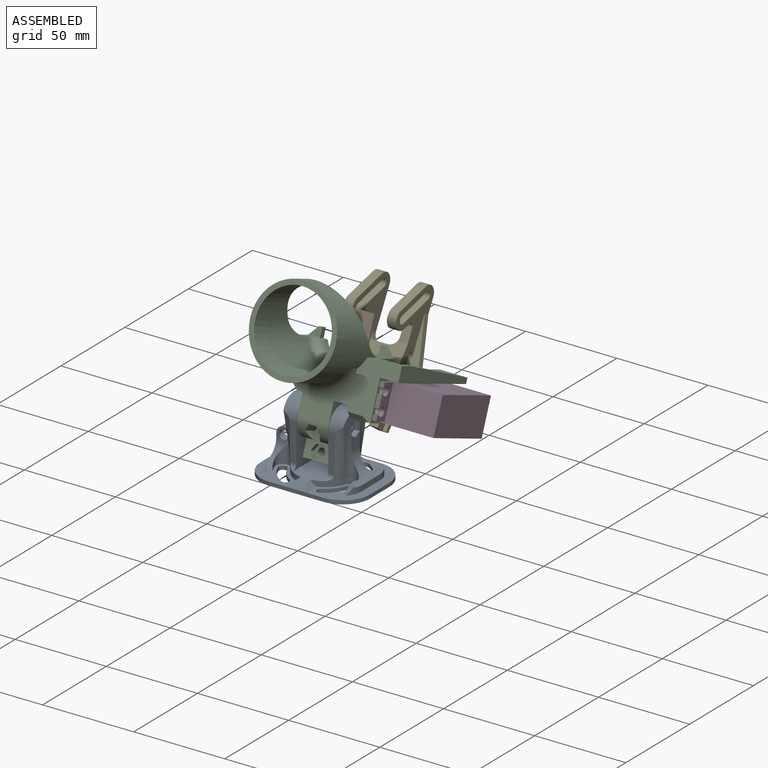
[diagram: assembled view]
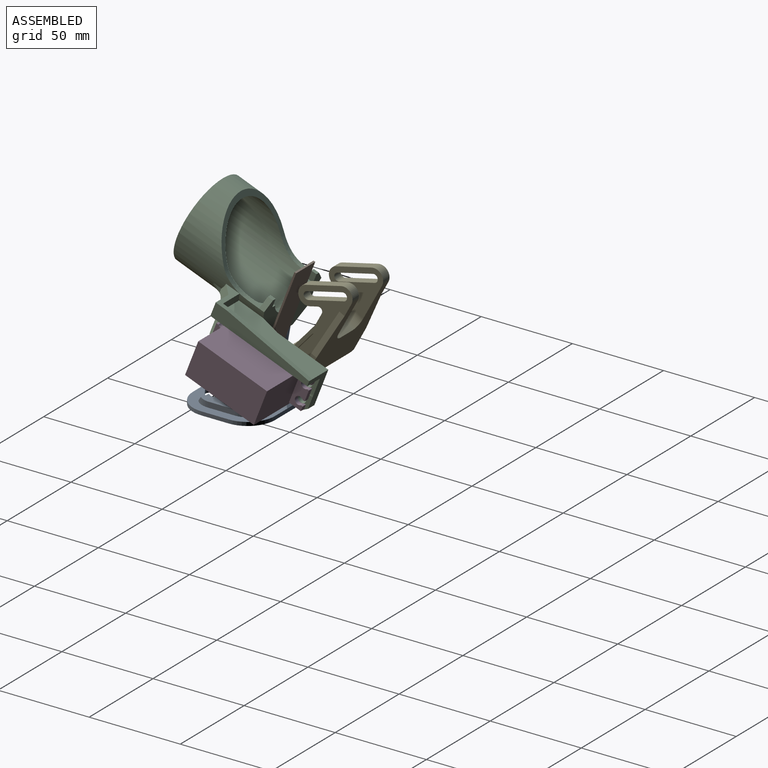
[diagram: assembled view, second angle]
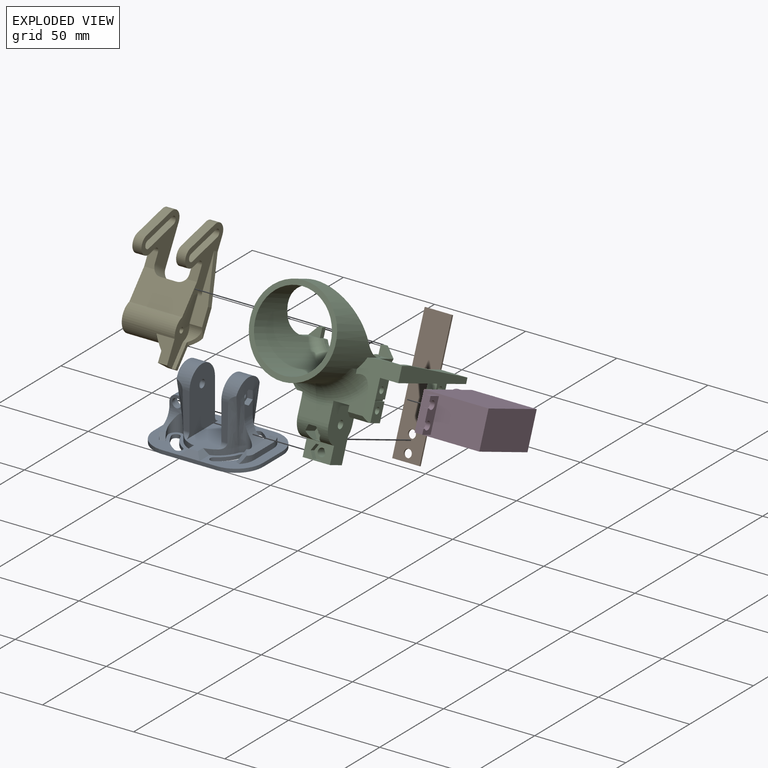
[diagram: exploded view]
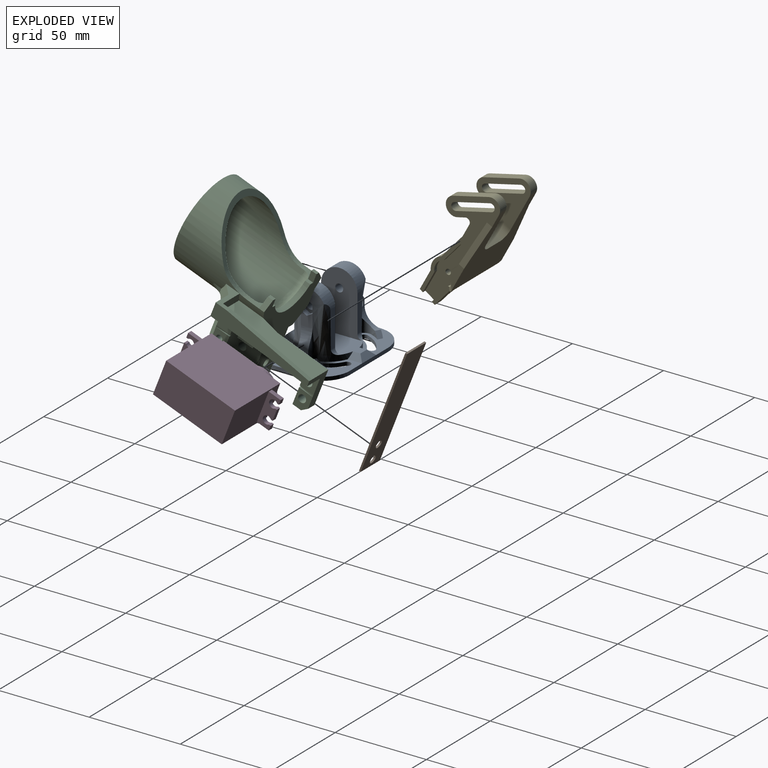
[diagram: exploded view, second angle]
ASSEMBLY  parts=5 mates=4
PART A: 100 faces, bbox 60.1x45.1x38.1 mm
  f0: plane 7.79x6.35mm, normal (1,0,0), area 42.6mm2, adj f62,f64,f66,f94,f95
  f1: cylinder r=2.16mm len=5mm, axis (-1,0,0), area 67.8mm2, adj f59,f99
  f2: plane 2.29x0.95mm, normal (0,0,1), area 1.1mm2, adj f35,f69,f91
  f3: plane 27.42x6.35mm, normal (-1,0,0), area 109.9mm2, adj f51,f57,f67,f68,f84,f85,f86,f91
  f4: plane 39x17.73mm, normal (0,0,1), area 556.7mm2, adj f32,f40,f41,f49,f54,f59,f71,f72
  f5: plane 45x24.5mm, normal (0,0,1), area 510.6mm2, adj f6,f7,f11,f12,f13,f14,f15,f22
  f6: cylinder r=15mm len=15mm, axis (0,0,-1), area 47.1mm2, adj f5,f7,f29,f31
  f7: plane 30x2mm, normal (0,-1,0), area 60mm2, adj f5,f6,f8,f30,f31,f82
  f8: cylinder r=15mm len=15mm, axis (0,0,-1), area 47.1mm2, adj f7,f9,f30,f31
  f9: plane 15x2mm, normal (1,0,0), area 30mm2, adj f8,f10,f30,f31
  f10: cylinder r=15mm len=15mm, axis (0,0,-1), area 47.1mm2, adj f9,f11,f30,f31
  f11: plane 30x2mm, normal (0,1,0), area 60mm2, adj f5,f10,f12,f30,f31,f83
  f12: cylinder r=15mm len=15mm, axis (0,0,-1), area 47.1mm2, adj f5,f11,f29,f31
  f13: cylinder r=2.16mm len=4.18mm, axis (0,0,-1), area 13.6mm2, adj f5,f14,f25,f31
  f14: cylinder r=17.48mm len=9.12mm, axis (0,0,-1), area 24.4mm2, adj f5,f13,f15,f31
  f15: cylinder r=2.16mm len=4.03mm, axis (0,0,-1), area 13.6mm2, adj f5,f14,f25,f31
  f16: cylinder r=17.48mm len=9.12mm, axis (0,0,-1), area 24.4mm2, adj f17,f26,f30,f31
  f17: cylinder r=2.16mm len=4.18mm, axis (0,0,-1), area 13.6mm2, adj f16,f18,f30,f31
  f18: cylinder r=21.8mm len=11.38mm, axis (0,0,-1), area 30.4mm2, adj f17,f26,f30,f31
  f19: cylinder r=2.16mm len=4.03mm, axis (0,0,-1), area 13.6mm2, adj f20,f27,f30,f31
  f20: cylinder r=21.8mm len=11.38mm, axis (0,0,-1), area 30.4mm2, adj f19,f21,f30,f31
  f21: cylinder r=2.16mm len=4.18mm, axis (0,0,-1), area 13.6mm2, adj f20,f27,f30,f31
  f22: cylinder r=17.48mm len=9.12mm, axis (0,0,-1), area 24.4mm2, adj f5,f23,f28,f31
  f23: cylinder r=2.16mm len=4.18mm, axis (0,0,-1), area 13.6mm2, adj f5,f22,f24,f31
  f24: cylinder r=21.8mm len=11.38mm, axis (0,0,-1), area 30.4mm2, adj f5,f23,f28,f31
  f25: cylinder r=21.8mm len=11.38mm, axis (0,0,-1), area 30.4mm2, adj f5,f13,f15,f31
  f26: cylinder r=2.16mm len=4.03mm, axis (0,0,-1), area 13.6mm2, adj f16,f18,f30,f31
  f27: cylinder r=17.48mm len=9.12mm, axis (0,0,-1), area 24.4mm2, adj f19,f21,f30,f31
  f28: cylinder r=2.16mm len=4.03mm, axis (0,0,-1), area 13.6mm2, adj f5,f22,f24,f31
  f29: plane 15x2mm, normal (-1,0,0), area 30mm2, adj f5,f6,f12,f31
  f30: plane 45x24.5mm, normal (0,0,1), area 510.6mm2, adj f7,f8,f9,f10,f11,f16,f17,f18
  f31: plane 60x45mm, normal (0,0,-1), area 2211.4mm2, adj f6,f7,f8,f9,f10,f11,f12,f13
  f32: cylinder r=15.64mm len=12.17mm, axis (0,0,-1), area 47.4mm2, adj f4,f5,f33,f55,f56,f72,f80
  f33: cylinder r=4mm len=9.67mm, axis (0,0,-1), area 75.6mm2, adj f5,f32,f34,f57,f91
  f34: cylinder r=23.64mm len=5.37mm, axis (0,0,-1), area 14.7mm2, adj f5,f33,f69,f91
  f35: cylinder r=10mm len=7.34mm, axis (0,0,-1), area 22.1mm2, adj f2,f5,f36,f69,f91
  f36: plane 15x14mm, normal (-1,0,0), area 132.3mm2, adj f5,f35,f37,f85,f86,f87,f91,f92
  f37: cylinder r=10mm len=7.34mm, axis (0,0,-1), area 22.1mm2, adj f5,f36,f50,f76,f92
  f38: cylinder r=23.64mm len=5.37mm, axis (0,0,-1), area 14.7mm2, adj f5,f39,f76,f92
  f39: cylinder r=4mm len=9.67mm, axis (0,0,-1), area 75.6mm2, adj f5,f38,f40,f51,f92
  f40: cylinder r=15.64mm len=12.17mm, axis (0,0,-1), area 47.4mm2, adj f4,f5,f39,f52,f53,f73,f81
  f41: cylinder r=15.64mm len=12.17mm, axis (0,0,-1), area 47.4mm2, adj f4,f30,f42,f60,f61,f74,f78
  f42: cylinder r=4mm len=16.4mm, axis (0,0,-1), area 75mm2, adj f30,f41,f43,f62,f77
  f43: cylinder r=23.64mm len=5.37mm, axis (0,0,-1), area 17.9mm2, adj f30,f42,f75,f77
  f44: cylinder r=10mm len=7.34mm, axis (0,0,-1), area 21.6mm2, adj f30,f45,f75,f77
  f45: plane 15x3mm, normal (1,0,0), area 45mm2, adj f30,f44,f46,f77
  f46: cylinder r=10mm len=7.34mm, axis (0,0,-1), area 21.6mm2, adj f30,f45,f70,f77
  f47: cylinder r=23.64mm len=5.37mm, axis (0,0,-1), area 17.9mm2, adj f30,f48,f70,f77
  f48: cylinder r=4mm len=16.4mm, axis (0,0,-1), area 75mm2, adj f30,f47,f49,f64,f77
  f49: cylinder r=15.64mm len=12.17mm, axis (0,0,-1), area 47.4mm2, adj f4,f30,f48,f58,f65,f71,f79
  f50: plane 2.29x0.95mm, normal (0,0,1), area 1.1mm2, adj f37,f76,f92
  f51: bspline ~33x6.82mm, area 140.1mm2, adj f3,f39,f52,f67
  f52: bspline ~33x4.72mm, area 112.5mm2, adj f40,f51,f53,f67
  f53: plane 23x3.78mm, normal (0,-1,0), area 71.7mm2, adj f40,f52,f54,f67,f81
  f54: plane 33x25.8mm, normal (1,0,0), area 606mm2, adj f4,f53,f55,f67,f68,f80,f81
  f55: plane 23x3.78mm, normal (0,1,0), area 71.7mm2, adj f32,f54,f56,f67,f80
  f56: bspline ~33x4.72mm, area 112.5mm2, adj f32,f55,f57,f67
  f57: bspline ~33x6.82mm, area 140.1mm2, adj f3,f33,f56,f67
  f58: plane 23x3.78mm, normal (0,1,0), area 71.7mm2, adj f49,f59,f65,f66,f79
  f59: plane 33x25.8mm, normal (-1,0,0), area 606mm2, adj f1,f4,f58,f60,f66,f78,f79
  f60: plane 23x3.78mm, normal (0,-1,0), area 71.7mm2, adj f41,f59,f61,f66,f78
  f61: bspline ~33x4.72mm, area 112.5mm2, adj f41,f60,f62,f66
  f62: bspline ~33x6.82mm, area 140.1mm2, adj f0,f42,f61,f63,f66,f96
  f63: plane 7.4x6.35mm, normal (1,0,0), area 41.2mm2, adj f62,f64,f77,f97,f98
  f64: bspline ~33x6.82mm, area 140.1mm2, adj f0,f48,f63,f65,f66,f93
  f65: bspline ~33x4.72mm, area 112.5mm2, adj f49,f58,f64,f66
  f66: cylinder r=10mm len=20mm, axis (-1,0,0), area 223.3mm2, adj f0,f58,f59,f60,f61,f62,f64,f65
  f67: cylinder r=10mm len=20mm, axis (1,0,0), area 223.3mm2, adj f3,f51,f52,f53,f54,f55,f56,f57
  f68: cylinder r=2.16mm len=8mm, axis (-1,0,0), area 108.5mm2, adj f3,f54
  f69: plane 4.37x3.9mm, normal (0.33,0.63,0.71), area 12.6mm2, adj f2,f5,f34,f35,f91
  f70: plane 5.85x5.21mm, normal (-0.33,0.63,0.71), area 18.4mm2, adj f30,f46,f47,f77
  f71: plane 7.89x3.04mm, normal (0.71,0,0.71), area 25mm2, adj f4,f30,f49,f83
  f72: plane 7.89x3.04mm, normal (-0.71,0,0.71), area 25mm2, adj f4,f5,f32,f83
  f73: plane 7.89x3.04mm, normal (-0.71,0,0.71), area 25mm2, adj f4,f5,f40,f82
  f74: plane 7.89x3.04mm, normal (0.71,0,0.71), area 25mm2, adj f4,f30,f41,f82
  f75: plane 5.85x5.21mm, normal (-0.33,-0.63,0.71), area 18.4mm2, adj f30,f43,f44,f77
  f76: plane 4.37x3.9mm, normal (0.33,-0.63,0.71), area 12.6mm2, adj f5,f37,f38,f50,f92
  f77: cylinder r=15mm len=23.88mm, axis (0,-1,0), area 153.9mm2, adj f42,f43,f44,f45,f46,f47,f48,f63
  f78: cylinder r=2.9mm len=3.28mm, axis (1,0,0), area 10.2mm2, adj f4,f41,f59,f60
  f79: cylinder r=2.9mm len=3.28mm, axis (1,0,0), area 10.2mm2, adj f4,f49,f58,f59
  f80: cylinder r=2.9mm len=3.28mm, axis (-1,0,0), area 10.2mm2, adj f4,f32,f54,f55
  f81: cylinder r=2.9mm len=3.28mm, axis (-1,0,0), area 10.2mm2, adj f4,f40,f53,f54
  f82: plane 11x3mm, normal (0,-0.71,0.71), area 33.9mm2, adj f4,f7,f73,f74
  f83: plane 11x3mm, normal (0,0.71,0.71), area 33.9mm2, adj f4,f11,f71,f72
  f84: plane 5x4.25mm, normal (0,0,1), area 21.2mm2, adj f3,f85,f86,f87
  f85: plane 8.25x6mm, normal (0,1,0), area 17.3mm2, adj f3,f36,f84,f87,f90,f91
  f86: plane 8.25x6mm, normal (0,-1,0), area 27.5mm2, adj f3,f36,f84,f87,f88,f92
  f87: cylinder r=4mm len=5mm, axis (0,-1,0), area 31.4mm2, adj f36,f84,f85,f86
  f88: cylinder r=2.5mm len=5mm, axis (0,1,0), area 31.4mm2, adj f86,f89,f92
  f89: plane 6.5x6.5mm, normal (0,1,0), area 13.5mm2, adj f88,f90
  f90: cylinder r=3.25mm len=6.5mm, axis (0,1,0), area 61.3mm2, adj f85,f89,f91
  f91: cylinder r=9mm len=9mm, axis (-1,0,0), area 55.3mm2, adj f2,f3,f33,f34,f35,f36,f69,f85
  f92: cylinder r=9mm len=9mm, axis (-1,0,0), area 58.8mm2, adj f3,f36,f37,f38,f39,f50,f76,f86
  f93: plane 4.42x3mm, normal (0,-1,0), area 13.2mm2, adj f64,f94,f98,f99
  f94: plane 3.18x3mm, normal (0,-0.5,-0.87), area 11mm2, adj f0,f93,f95,f99
  f95: plane 3.18x3mm, normal (0,0.5,-0.87), area 11mm2, adj f0,f94,f96,f99
  f96: plane 4.42x3mm, normal (0,1,0), area 13.2mm2, adj f62,f95,f97,f99
  f97: plane 3.18x3mm, normal (0,0.5,0.87), area 11mm2, adj f63,f96,f98,f99
  f98: plane 3.18x3mm, normal (0,-0.5,0.87), area 11mm2, adj f63,f93,f97,f99
  f99: plane 8.08x6.35mm, normal (1,0,0), area 25.1mm2, adj f1,f93,f94,f95,f96,f97,f98
PART B: 8 faces, bbox 15x1x70 mm
  f0: plane 70x1mm, normal (-1,0,0), area 70mm2, adj f1,f4,f6,f7
  f1: plane 15x1mm, normal (0,0,1), area 15mm2, adj f0,f2,f6,f7
  f2: plane 70x1mm, normal (1,0,0), area 70mm2, adj f1,f4,f6,f7
  f3: cylinder r=2.16mm len=4.32mm, axis (0,-1,0), area 13.6mm2, adj f6,f7
  f4: plane 15x1mm, normal (0,0,-1), area 15mm2, adj f0,f2,f6,f7
  f5: cylinder r=2.16mm len=4.32mm, axis (0,-1,0), area 13.6mm2, adj f6,f7
  f6: plane 70x15mm, normal (0,1,0), area 1020.7mm2, adj f0,f1,f2,f3,f4,f5
  f7: plane 70x15mm, normal (0,-1,0), area 1020.7mm2, adj f0,f1,f2,f3,f4,f5
PART C: 91 faces, bbox 75.5x93.1x83.6 mm
  f0: plane 10.7x10.09mm, normal (0,-1,0), area 57.7mm2, adj f2,f81,f88,f89,f90
  f1: plane 54.5x15.01mm, normal (0,0,-1), area 730.1mm2, adj f12,f14,f57,f62,f84,f85,f87
  f2: plane 20.27x11mm, normal (0,0,1), area 193.2mm2, adj f0,f12,f31,f69,f81,f82,f89
  f3: cylinder r=2.16mm len=7mm, axis (0,1,0), area 95mm2, adj f12,f54
  f4: cylinder r=10mm len=20mm, axis (-1,0,0), area 237.5mm2, adj f7,f8,f10,f12,f30,f31,f32,f41
  f5: cylinder r=2.16mm len=10mm, axis (0,1,0), area 135.7mm2, adj f12,f47
  f6: plane 15x10mm, normal (0,0,1), area 150mm2, adj f7,f10,f12,f32
  f7: plane 19x10mm, normal (-1,0,0), area 111.5mm2, adj f4,f6,f12,f32
  f8: plane 17x8.6mm, normal (0,-1,0), area 133.7mm2, adj f4,f30,f31,f89
  f9: plane 20.36x3.36mm, normal (0,0,1), area 66.1mm2, adj f12,f21,f30,f89
  f10: plane 19x10mm, normal (1,0,0), area 111.5mm2, adj f4,f6,f12,f32
  f11: plane 5.03x3.94mm, normal (0,-1,0), area 1mm2, adj f16,f24,f29
  f12: plane 58x44.87mm, normal (0,1,0), area 1200.7mm2, adj f1,f2,f3,f4,f5,f6,f7,f9
  f13: plane 5.03x3.94mm, normal (0,-1,0), area 1mm2, adj f16,f23,f27
  f14: cylinder r=23.5mm len=53mm, axis (0,1,0), area 3351.8mm2, adj f1,f12,f17,f18,f19,f22,f23,f24
  f15: cylinder r=20.75mm len=45mm, axis (0,1,0), area 3932.9mm2, adj f19,f22,f23,f24,f25,f26,f27,f28
  f16: cylinder r=15mm len=27.5mm, axis (0,1,0), area 104.3mm2, adj f11,f12,f13,f23,f24,f28
  f17: plane 5x2.4mm, normal (-1,0,0), area 4mm2, adj f14,f89,f90
  f18: plane 30x9.44mm, normal (1,0,0), area 222.4mm2, adj f12,f14,f21,f89
  f19: plane 47x47mm, normal (0,-1,0), area 382.3mm2, adj f14,f15
  f20: cylinder r=2.16mm len=17mm, axis (1,0,0), area 230.6mm2, adj f30,f31
  f21: plane 20.81x8.23mm, normal (0.71,0,0.71), area 238.2mm2, adj f9,f12,f18,f89
  f22: plane 46.95x22.4mm, normal (0,0.8,-0.59), area 230.2mm2, adj f14,f15,f25,f26
  f23: plane 9.92x8.69mm, normal (0,0,-1), area 32.6mm2, adj f12,f13,f14,f15,f16,f25,f27,f33
  f24: plane 9.92x8.69mm, normal (0,0,-1), area 32.6mm2, adj f11,f12,f14,f15,f16,f26,f29,f39
  f25: cylinder r=20mm len=16.08mm, axis (1,0,0), area 52.7mm2, adj f14,f15,f22,f23
  f26: cylinder r=20mm len=16.08mm, axis (1,0,0), area 52.7mm2, adj f14,f15,f22,f24
  f27: torus R=15.75mm, axis (0,1,0), area 72.9mm2, adj f13,f15,f23,f28
  f28: bspline ~26.78x8.72mm, area 204.9mm2, adj f15,f16,f27,f29
  f29: torus R=15.75mm, axis (0,1,0), area 72.9mm2, adj f11,f15,f24,f28
  f30: plane 21.02x20.29mm, normal (1,0,0), area 362.7mm2, adj f4,f8,f9,f12,f20,f89
  f31: plane 21.02x20.29mm, normal (-1,0,0), area 362.7mm2, adj f2,f4,f8,f12,f20,f89
  f32: plane 15x9mm, normal (0,-1,0), area 91.3mm2, adj f4,f6,f7,f10,f48,f49,f50,f51
  f33: plane 5x3mm, normal (1,0,0), area 15mm2, adj f12,f23,f34,f36
  f34: plane 3x2mm, normal (0,0,-1), area 6mm2, adj f12,f33,f35,f36
  f35: plane 5x4.43mm, normal (-0.75,0,-0.66), area 20mm2, adj f12,f14,f34,f36
  f36: plane 6.43x5mm, normal (0,-1,0), area 21.1mm2, adj f23,f33,f34,f35
  f37: plane 5x4.43mm, normal (0.75,0,-0.66), area 20mm2, adj f12,f14,f38,f40
  f38: plane 3x2mm, normal (0,0,-1), area 6mm2, adj f12,f37,f39,f40
  f39: plane 5x3mm, normal (-1,0,0), area 15mm2, adj f12,f24,f38,f40
  f40: plane 6.43x5mm, normal (0,-1,0), area 21.1mm2, adj f24,f37,f38,f39
  f41: plane 9.7x4.1mm, normal (0,0,1), area 39.7mm2, adj f4,f42,f46,f47
  f42: plane 9.79x3.65mm, normal (-0.87,0,0.5), area 36.9mm2, adj f4,f41,f43,f47
  f43: plane 8x3.55mm, normal (-0.87,0,-0.5), area 24.8mm2, adj f4,f42,f44,f47
  f44: plane 4.1x2.97mm, normal (0,0,-1), area 12.2mm2, adj f4,f43,f45,f47
  f45: plane 8x3.55mm, normal (0.87,0,-0.5), area 24.8mm2, adj f4,f44,f46,f47
  f46: plane 9.79x3.65mm, normal (0.87,0,0.5), area 36.9mm2, adj f4,f41,f45,f47
  f47: plane 8.2x7.1mm, normal (0,-1,0), area 29mm2, adj f5,f41,f42,f43,f44,f45,f46
  f48: plane 4.1x3mm, normal (0,0,-1), area 12.3mm2, adj f32,f49,f53,f54
  f49: plane 3.55x3mm, normal (0.87,0,-0.5), area 12.3mm2, adj f32,f48,f50,f54
  f50: plane 3.55x3mm, normal (0.87,0,0.5), area 12.3mm2, adj f32,f49,f51,f54
  f51: plane 4.1x3mm, normal (0,0,1), area 12.3mm2, adj f32,f50,f52,f54
  f52: plane 3.55x3mm, normal (-0.87,0,0.5), area 12.3mm2, adj f32,f51,f53,f54
  f53: plane 3.55x3mm, normal (-0.87,0,-0.5), area 12.3mm2, adj f32,f48,f52,f54
  f54: plane 8.2x7.1mm, normal (0,-1,0), area 29mm2, adj f3,f48,f49,f50,f51,f52,f53
  f55: plane 10x8mm, normal (-1,0,0), area 65.4mm2, adj f57,f59,f61,f65,f67
  f56: plane 10x8mm, normal (-1,0,0), area 60.9mm2, adj f57,f58,f59,f60,f64,f76
  f57: plane 21x15mm, normal (0,1,0), area 135mm2, adj f1,f55,f56,f62,f64,f65,f66,f67
  f58: plane 5x5mm, normal (0,0,1), area 25mm2, adj f56,f59,f62,f76
  f59: plane 21x5mm, normal (0,-1,0), area 104mm2, adj f55,f56,f58,f62,f64,f65,f66,f67
  f60: cylinder r=2.16mm len=5mm, axis (-1,0,0), area 67.8mm2, adj f56,f62
  f61: cylinder r=2.16mm len=5mm, axis (-1,0,0), area 67.8mm2, adj f55,f62
  f62: plane 30x24mm, normal (1,0,0), area 224.2mm2, adj f1,f57,f58,f59,f60,f61,f67,f76
  f63: plane 10x8mm, normal (-1,0,0), area 70.4mm2, adj f67,f69,f73,f79,f90
  f64: plane 8x1mm, normal (0,0,-1), area 4.1mm2, adj f56,f57,f59,f66
  f65: plane 8x1mm, normal (0,0,1), area 4.1mm2, adj f55,f57,f59,f66
  f66: plane 8x1mm, normal (-0.99,-0.12,0), area 8.1mm2, adj f57,f59,f64,f65
  f67: plane 57x18.5mm, normal (0,0,1), area 819mm2, adj f12,f55,f57,f59,f62,f63,f68,f69
  f68: plane 10x8mm, normal (0,-1,0), area 80mm2, adj f67,f75,f83,f90
  f69: plane 21x11mm, normal (0,1,0), area 191.2mm2, adj f2,f63,f67,f70,f71,f72,f73,f74
  f70: plane 11x8.5mm, normal (0,0,1), area 93.4mm2, adj f69,f71,f81,f88,f90
  f71: plane 10x8mm, normal (-1,0,0), area 70.4mm2, adj f69,f70,f72,f78,f90
  f72: plane 8.02x1mm, normal (0,0,-1), area 4.1mm2, adj f69,f71,f74,f90
  f73: plane 8.02x1mm, normal (0,0,1), area 4.1mm2, adj f63,f69,f74,f90
  f74: plane 8.02x1mm, normal (-0.99,0.12,0), area 8.1mm2, adj f69,f72,f73,f90
  f75: plane 57x8mm, normal (-1,0,0), area 331mm2, adj f57,f67,f68,f83,f86
  f76: plane 5x3mm, normal (0,0.71,0.71), area 21.2mm2, adj f56,f57,f58,f62
  f77: plane 3.5x3.5mm, normal (-1,0,0), area 9.6mm2, adj f78
  f78: cylinder r=1.75mm len=10mm, axis (-1,0,0), area 110mm2, adj f71,f77
  f79: cylinder r=1.75mm len=10mm, axis (-1,0,0), area 110mm2, adj f63,f80
  f80: plane 3.5x3.5mm, normal (-1,0,0), area 9.6mm2, adj f79
  f81: plane 11x5.5mm, normal (1,0,0), area 57.4mm2, adj f0,f2,f69,f70,f88
  f82: plane 15.5x9mm, normal (-1,0,0), area 139.5mm2, adj f2,f12,f67,f69
  f83: plane 15.42x12.42mm, normal (0,0,-1), area 64.5mm2, adj f14,f68,f75,f84,f85,f86,f90
  f84: plane 15.01x5mm, normal (0,1,0), area 69.2mm2, adj f1,f14,f83,f85
  f85: plane 54.5x5mm, normal (1,0,0), area 147.5mm2, adj f1,f83,f84,f86
  f86: plane 50x5mm, normal (0,0.1,-1), area 125.6mm2, adj f57,f75,f83,f85
  f87: plane 10x3mm, normal (0.97,0.24,0), area 30.9mm2, adj f1,f12,f62,f67
  f88: plane 10.5x2.5mm, normal (0,-0.71,0.71), area 32.7mm2, adj f0,f70,f81,f90
  f89: torus R=33.5mm, axis (0,1,0), area 721.3mm2, adj f0,f2,f8,f9,f14,f17,f18,f21
  f90: plane 29x8mm, normal (-0.71,-0.71,0), area 170.6mm2, adj f0,f14,f17,f63,f68,f70,f71,f72
PART D: 44 faces, bbox 54.5x39x20 mm
  f0: plane 35.5x20mm, normal (-1,0,0), area 665mm2, adj f5,f6,f7,f8,f31,f32,f33,f39
  f1: plane 35.5x20mm, normal (1,0,0), area 665mm2, adj f4,f6,f7,f8,f18,f24,f25,f38
  f2: plane 12.8x12.8mm, normal (0,1,0), area 31mm2, adj f15,f16
  f3: plane 36.76x20mm, normal (0,1,0), area 488.8mm2, adj f9,f10,f11,f12,f13,f14,f15
  f4: plane 30.36x20mm, normal (0,1,0), area 146.7mm2, adj f1,f6,f7,f9,f10,f11,f12,f13
  f5: plane 20x10.14mm, normal (0,1,0), area 45.7mm2, adj f0,f6,f7,f9
  f6: plane 40.5x35.5mm, normal (0,0,1), area 1437.8mm2, adj f0,f1,f4,f5,f8
  f7: plane 40.5x35.5mm, normal (0,0,-1), area 1437.8mm2, adj f0,f1,f4,f5,f8
  f8: plane 40.5x20mm, normal (0,-1,0), area 810mm2, adj f0,f1,f6,f7
  f9: cylinder r=10mm len=20mm, axis (0,-1,0), area 80.9mm2, adj f3,f4,f5,f10,f14
  f10: plane 20x2mm, normal (0,0,1), area 40mm2, adj f3,f4,f9,f11
  f11: plane 4.2x2mm, normal (1,0,0), area 8.4mm2, adj f3,f4,f10,f12
  f12: cylinder r=6mm len=9.6mm, axis (0,-1,0), area 22.3mm2, adj f3,f4,f11,f13
  f13: plane 4.2x2mm, normal (1,0,0), area 8.4mm2, adj f3,f4,f12,f14
  f14: plane 20x2mm, normal (0,0,-1), area 40mm2, adj f3,f4,f9,f13
  f15: cylinder r=6.4mm len=12.8mm, axis (0,-1,0), area 40.2mm2, adj f2,f3
  f16: cylinder r=5.58mm len=11.15mm, axis (0,-1,0), area 17.5mm2, adj f2,f17
  f17: plane 11.15x11.15mm, normal (0,1,0), area 97.6mm2, adj f16
  f18: plane 7x2.5mm, normal (0,0,-1), area 17.5mm2, adj f1,f19,f24,f25
  f19: plane 2.75x2.5mm, normal (1,0,0), area 6.9mm2, adj f18,f20,f24,f25
  f20: plane 2.5x1.07mm, normal (0,0,1), area 2.7mm2, adj f19,f21,f24,f25
  f21: cylinder r=2.25mm len=4.5mm, axis (0,1,0), area 27.1mm2, adj f20,f22,f24,f25
  f22: plane 2.5x1.07mm, normal (0,0,-1), area 2.7mm2, adj f21,f23,f24,f25
  f23: plane 6.5x2.5mm, normal (1,0,0), area 16.2mm2, adj f22,f24,f25,f34
  f24: plane 18x7mm, normal (0,-1,0), area 90.1mm2, adj f1,f18,f19,f20,f21,f22,f23,f34
  f25: plane 18x7mm, normal (0,1,0), area 90.1mm2, adj f1,f18,f19,f20,f21,f22,f23,f34
  f26: plane 6.5x2.5mm, normal (-1,0,0), area 16.2mm2, adj f27,f32,f33,f43
  f27: plane 2.5x1.07mm, normal (0,0,-1), area 2.7mm2, adj f26,f28,f32,f33
  f28: cylinder r=2.25mm len=4.5mm, axis (0,1,0), area 27.1mm2, adj f27,f29,f32,f33
  f29: plane 2.5x1.07mm, normal (0,0,1), area 2.7mm2, adj f28,f30,f32,f33
  f30: plane 2.75x2.5mm, normal (-1,0,0), area 6.9mm2, adj f29,f31,f32,f33
  f31: plane 7x2.5mm, normal (0,0,-1), area 17.5mm2, adj f0,f30,f32,f33
  f32: plane 18x7mm, normal (0,-1,0), area 90.1mm2, adj f0,f26,f27,f28,f29,f30,f31,f39
  f33: plane 18x7mm, normal (0,1,0), area 90.1mm2, adj f0,f26,f27,f28,f29,f30,f31,f39
  f34: plane 2.5x1.07mm, normal (0,0,1), area 2.7mm2, adj f23,f24,f25,f35
  f35: cylinder r=2.25mm len=4.5mm, axis (0,1,0), area 27.1mm2, adj f24,f25,f34,f36
  f36: plane 2.5x1.07mm, normal (0,0,-1), area 2.7mm2, adj f24,f25,f35,f37
  f37: plane 2.75x2.5mm, normal (1,0,0), area 6.9mm2, adj f24,f25,f36,f38
  f38: plane 7x2.5mm, normal (0,0,1), area 17.5mm2, adj f1,f24,f25,f37
  f39: plane 7x2.5mm, normal (0,0,1), area 17.5mm2, adj f0,f32,f33,f40
  f40: plane 2.75x2.5mm, normal (-1,0,0), area 6.9mm2, adj f32,f33,f39,f41
  f41: plane 2.5x1.07mm, normal (0,0,-1), area 2.7mm2, adj f32,f33,f40,f42
  f42: cylinder r=2.25mm len=4.5mm, axis (0,1,0), area 27.1mm2, adj f32,f33,f41,f43
  f43: plane 2.5x1.07mm, normal (0,0,1), area 2.7mm2, adj f26,f32,f33,f42
PART E: 57 faces, bbox 39.1x31.2x69.1 mm
  f0: plane 68.97x24.5mm, normal (-1,0,0), area 410.5mm2, adj f4,f5,f6,f7,f8,f9,f10,f11
  f1: plane 13.73x3.42mm, normal (-1,0,0), area 26.2mm2, adj f4,f17,f25,f26,f29,f48
  f2: plane 26.41x26.12mm, normal (1,0,0), area 340.5mm2, adj f5,f6,f7,f8,f9,f10,f11,f12
  f3: plane 11.26x5.56mm, normal (1,0,0), area 49.5mm2, adj f4,f16,f17,f52
  f4: plane 9.97x5mm, normal (0,0,1), area 38mm2, adj f0,f1,f3,f16,f17,f27,f28,f29
  f5: cylinder r=2.16mm len=5mm, axis (1,0,0), area 33.9mm2, adj f0,f2,f6,f19
  f6: plane 14.92x13.32mm, normal (0,0.75,0.67), area 100mm2, adj f0,f2,f5,f7
  f7: cylinder r=2.16mm len=5mm, axis (1,0,0), area 33.9mm2, adj f0,f2,f6,f19
  f8: plane 46.84x39mm, normal (0,0.99,-0.11), area 1132.9mm2, adj f0,f2,f9,f15,f30,f31,f32,f38
  f9: cylinder r=5.16mm len=8.97mm, axis (1,0,0), area 59.3mm2, adj f0,f2,f8,f10
  f10: plane 14.92x13.32mm, normal (0,-0.75,-0.67), area 100mm2, adj f0,f2,f9,f11
  f11: cylinder r=5.16mm len=9.01mm, axis (1,0,0), area 81mm2, adj f0,f2,f10,f12
  f12: plane 5x3.34mm, normal (0,0.75,0.67), area 22.4mm2, adj f0,f2,f11,f56
  f13: plane 7.64x5.68mm, normal (0,-0.99,0.11), area 38.9mm2, adj f0,f2,f14,f53,f56
  f14: plane 29.13x17.45mm, normal (0,-0.99,-0.11), area 467.4mm2, adj f0,f13,f15,f30,f32,f37,f53,f54
  f15: cylinder r=8.25mm len=39mm, axis (1,0,0), area 798.4mm2, adj f0,f8,f14,f16,f17,f32,f48,f49
  f16: plane 12.37x10mm, normal (0,-0.99,0.11), area 80.6mm2, adj f0,f3,f4,f15,f52
  f17: plane 12.37x10.22mm, normal (0,0.99,0.11), area 80.6mm2, adj f1,f3,f4,f15,f48,f52
  f18: cylinder r=1.5mm len=4mm, axis (1,0,0), area 37.7mm2, adj f27,f50
  f19: plane 14.92x13.32mm, normal (0,-0.75,-0.67), area 100mm2, adj f0,f2,f5,f7
  f20: plane 12.99x2mm, normal (0,0.99,-0.11), area 26.2mm2, adj f0,f21,f27,f28
  f21: cylinder r=6.25mm len=8.67mm, axis (1,0,0), area 19.2mm2, adj f0,f20,f22,f27
  f22: plane 12.99x2mm, normal (0,0.99,0.11), area 26.2mm2, adj f0,f21,f23,f27
  f23: cylinder r=3.02mm len=6mm, axis (1,0,0), area 17.6mm2, adj f0,f22,f24,f27
  f24: plane 34.33x7mm, normal (0,-0.99,0.11), area 136.4mm2, adj f0,f23,f25,f27,f42,f43
  f25: cylinder r=6.25mm len=8.67mm, axis (1,0,0), area 48.5mm2, adj f1,f24,f26,f27,f42,f48
  f26: plane 12.99x2mm, normal (0,-0.99,-0.11), area 26.2mm2, adj f1,f25,f27,f29
  f27: plane 37.56x12.5mm, normal (-1,0,0), area 300.3mm2, adj f4,f18,f20,f21,f22,f23,f24,f25
  f28: cylinder r=3.02mm len=2mm, axis (1,0,0), area 0.5mm2, adj f0,f4,f20,f27
  f29: cylinder r=3.02mm len=2mm, axis (1,0,0), area 0.5mm2, adj f1,f4,f26,f27
  f30: plane 10.65x9mm, normal (0,0,-1), area 95.8mm2, adj f8,f14,f53,f54
  f31: plane 26.41x26.12mm, normal (-1,0,0), area 340.5mm2, adj f8,f33,f34,f35,f36,f37,f38,f39
  f32: plane 59.66x27.03mm, normal (1,0,0), area 592mm2, adj f8,f14,f15,f33,f34,f35,f36,f37
  f33: plane 14.92x13.32mm, normal (0,-0.75,-0.67), area 100mm2, adj f31,f32,f39,f41
  f34: plane 14.92x13.32mm, normal (0,-0.75,-0.67), area 100mm2, adj f31,f32,f35,f38
  f35: cylinder r=5.16mm len=9.01mm, axis (-1,0,0), area 81mm2, adj f31,f32,f34,f36
  f36: plane 5x3.34mm, normal (0,0.75,0.67), area 22.4mm2, adj f31,f32,f35,f55
  f37: plane 7.64x5.68mm, normal (0,-0.99,0.11), area 38.9mm2, adj f14,f31,f32,f54,f55
  f38: cylinder r=5.16mm len=8.97mm, axis (-1,0,0), area 59.3mm2, adj f8,f31,f32,f34
  f39: cylinder r=2.16mm len=5mm, axis (-1,0,0), area 33.9mm2, adj f31,f32,f33,f40
  f40: plane 14.92x13.32mm, normal (0,0.75,0.67), area 100mm2, adj f31,f32,f39,f41
  f41: cylinder r=2.16mm len=5mm, axis (-1,0,0), area 33.9mm2, adj f31,f32,f33,f40
  f42: plane 14.2x4.85mm, normal (-1,0,0), area 38.5mm2, adj f8,f24,f25,f43,f48
  f43: plane 25.21x6.07mm, normal (-0.98,-0.02,-0.19), area 82.3mm2, adj f0,f8,f24,f42
  f44: plane 34.33x5mm, normal (0,-0.99,0.11), area 110.3mm2, adj f32,f45,f46,f47
  f45: cylinder r=6.25mm len=8.16mm, axis (-1,0,0), area 29.3mm2, adj f32,f44,f46,f49
  f46: plane 14.2x4.85mm, normal (1,0,0), area 38.5mm2, adj f8,f44,f45,f47,f49
  f47: plane 25.21x6.07mm, normal (0.98,-0.02,-0.19), area 82.3mm2, adj f8,f32,f44,f46
  f48: plane 9.31x5mm, normal (-0.71,-0.53,0.46), area 18.2mm2, adj f1,f15,f17,f25,f42
  f49: plane 9.18x5mm, normal (0.71,-0.53,0.46), area 18.2mm2, adj f15,f32,f45,f46
  f50: plane 7x7mm, normal (1,0,0), area 31.4mm2, adj f18,f51
  f51: cylinder r=3.5mm len=23mm, axis (1,0,0), area 505.8mm2, adj f32,f50
  f52: cone r=8.25mm half-angle=45deg, axis (-1,0,0), area 90.7mm2, adj f3,f15,f16,f17
  f53: cylinder r=5mm len=10.65mm, axis (0,1,0), area 80.8mm2, adj f2,f8,f13,f14,f30
  f54: cylinder r=5mm len=10.65mm, axis (0,1,0), area 80.8mm2, adj f8,f14,f30,f31,f37
  f55: cylinder r=2mm len=5mm, axis (1,0,0), area 23mm2, adj f31,f32,f36,f37
  f56: cylinder r=2mm len=5mm, axis (-1,0,0), area 23mm2, adj f0,f2,f12,f13
PLACE A t=(-30,-22.5,0)mm
PLACE B rot(axis=(1,0,0),158.7deg) t=(0,27.94,61.11)mm
PLACE C rot(axis=(0,-0.98,0.18),180deg) t=(0,21.42,63.66)mm
PLACE D rot(axis=(0.7,-0.7,0.13),165deg) t=(57.5,25.35,35.29)mm
PLACE E rot(axis=(0,-0.95,0.3),180deg) t=(0,29.5,65.87)mm
MATE fastened C.f5 <-> B.f3  axis (0,0.93,-0.36) through (0,7.14,18.78)mm
MATE fastened C.f61 <-> D.f28  axis (1,0,0) through (28,49.9,30.81)mm
MATE revolute C.f4 <-> A.f1  axis (-1,0,0) through (-8.5,0,28)mm
MATE revolute D.f9 <-> E.f15  axis (-1,0,0) through (18.5,34.77,31.62)mm
